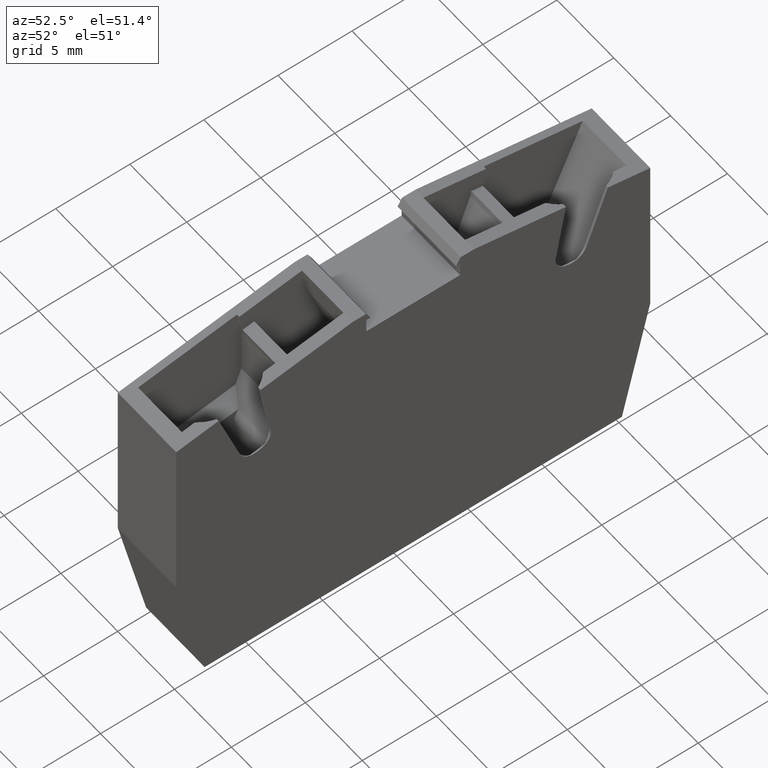
[diagram: clean part render]
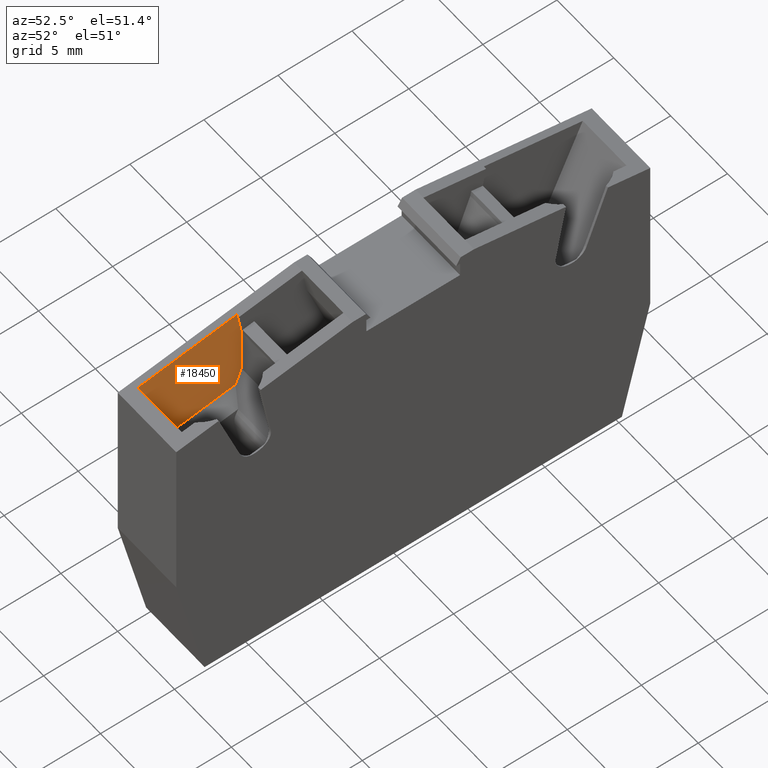
[diagram: same view with one face highlighted and labeled with its STEP entity id]
A machine part, auxiliary view. The second image highlights one B-rep face of the part: STEP entity #18450.
In plain terms, the highlighted planar face has unit normal (1, 0, -0).
Its self-contained STEP definition (entity closure, byte-faithful):
#12760=CARTESIAN_POINT('',(-10.5089783127422,118.932024321456,
59.6999999999998));
#12770=VERTEX_POINT('',#12760);
#12800=CARTESIAN_POINT('',(-6.72796270864293,75.7148182090427,
59.6999999999999));
#12810=DIRECTION('',(-0.0871557427476546,0.996194698091746,
-7.29475286832201E-19));
#12820=VECTOR('',#12810,1.);
#12830=LINE('',#12800,#12820);
#12840=CARTESIAN_POINT('',(-11.0996822976289,125.68380176416,
59.6999999999998));
#12850=VERTEX_POINT('',#12840);
#12860=EDGE_CURVE('',#12770,#12850,#12830,.T.);
#17290=CARTESIAN_POINT('',(-4.82889443494413,120.55590533904,
59.6999999999998));
#17300=VERTEX_POINT('',#17290);
#17330=CARTESIAN_POINT('',(14.912573618311,134.379030085255,
59.6999999999997));
#17340=DIRECTION('',(-0.819152044288991,-0.573576436351047,
3.49699906371743E-15));
#17350=VECTOR('',#17340,1.);
#17360=LINE('',#17330,#17350);
#17370=CARTESIAN_POINT('',(-5.77476974149912,119.893596319183,
59.6999999999998));
#17380=VERTEX_POINT('',#17370);
#17390=EDGE_CURVE('',#17300,#17380,#17360,.T.);
#17670=CARTESIAN_POINT('',(-8.80802261013139,119.080838662594,
59.6999999999998));
#17680=VERTEX_POINT('',#17670);
#17710=CARTESIAN_POINT('',(30.7687890493707,122.543361021301,
59.6999999999997));
#17720=DIRECTION('',(-0.996194698091746,-0.0871557427476591,
4.00420640236362E-15));
#17730=VECTOR('',#17720,1.);
#17740=LINE('',#17710,#17730);
#17750=EDGE_CURVE('',#17680,#12770,#17740,.T.);
#18010=CARTESIAN_POINT('',(30.7687890493707,129.685413385756,
59.6999999999997));
#18020=DIRECTION('',(0.965925826289068,0.258819045102522,
-3.94129173741931E-15));
#18030=VECTOR('',#18020,1.);
#18040=LINE('',#18010,#18030);
#18050=EDGE_CURVE('',#17680,#17380,#18040,.T.);
#18200=CARTESIAN_POINT('',(-11.0915317487264,125.59064056391,
59.6999999999998));
#18210=DIRECTION('',(-8.10204052127019E-18,-7.08836697043965E-19,-1.));
#18220=DIRECTION('',(-0.996194698091746,-0.0871557427476592,
8.13298899983151E-18));
#18230=AXIS2_PLACEMENT_3D('',#18200,#18210,#18220);
#18240=PLANE('',#18230);
#18250=ORIENTED_EDGE('',*,*,#12860,.T.);
#18260=ORIENTED_EDGE('',*,*,#17750,.T.);
#18270=ORIENTED_EDGE('',*,*,#18050,.F.);
#18280=ORIENTED_EDGE('',*,*,#17390,.T.);
#18290=CARTESIAN_POINT('',(-5.32175304869658,126.189305072097,
59.6999999999998));
#18300=DIRECTION('',(0.0871557427476546,-0.996194698091746,
6.31088724176809E-30));
#18310=VECTOR('',#18300,1.);
#18320=LINE('',#18290,#18310);
#18330=CARTESIAN_POINT('',(-5.19758952738552,124.770109529416,
59.6999999999998));
#18340=VERTEX_POINT('',#18330);
#18350=EDGE_CURVE('',#18340,#17300,#18320,.T.);
#18360=ORIENTED_EDGE('',*,*,#18350,.T.);
#18370=CARTESIAN_POINT('',(18.4689827343705,121.106330571619,
59.6999999999997));
#18380=DIRECTION('',(-0.988228381446553,0.152985836284037,
3.8391318155542E-15));
#18390=VECTOR('',#18380,1.);
#18400=LINE('',#18370,#18390);
#18410=EDGE_CURVE('',#18340,#12850,#18400,.T.);
#18420=ORIENTED_EDGE('',*,*,#18410,.F.);
#18430=EDGE_LOOP('',(#18420,#18360,#18280,#18270,#18260,#18250));
#18440=FACE_OUTER_BOUND('',#18430,.T.);
#18450=ADVANCED_FACE('',(#18440),#18240,.T.);